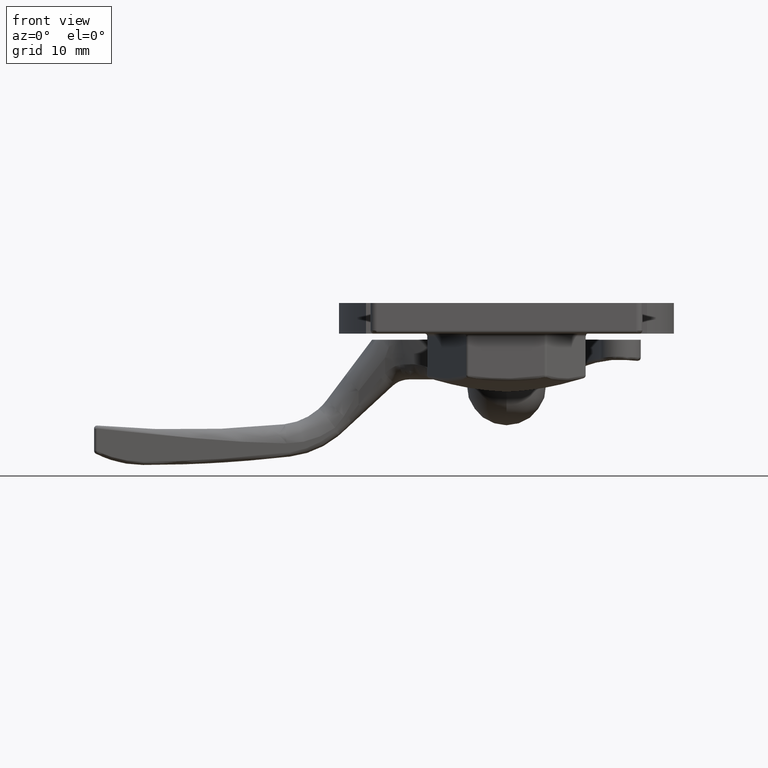
[diagram: clean part render]
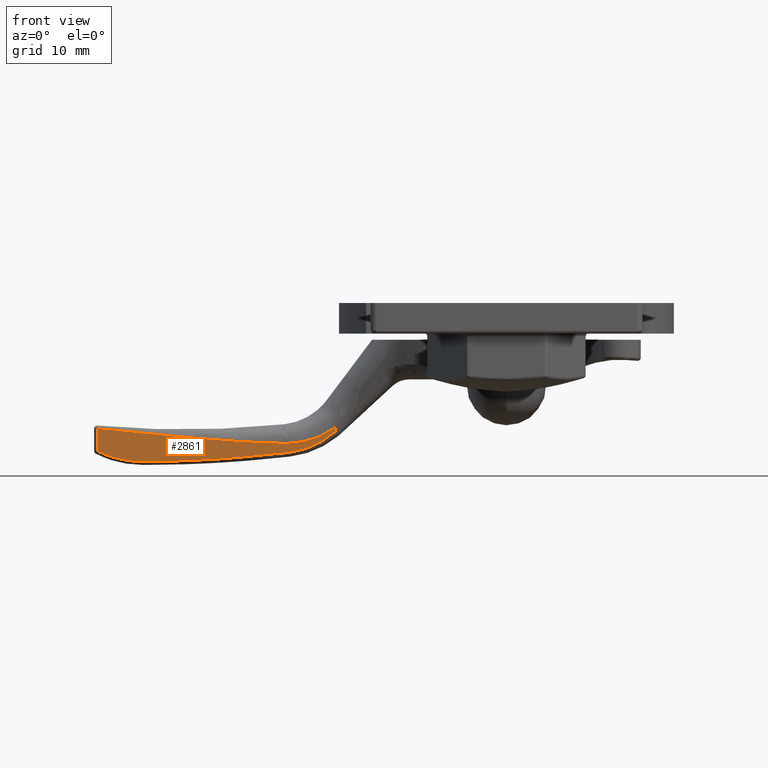
[diagram: same view with one face highlighted and labeled with its STEP entity id]
A machine part, front view. The second image highlights one B-rep face of the part: STEP entity #2861.
In plain terms, the highlighted planar face has unit normal (0, -1, 0).
Its self-contained STEP definition (entity closure, byte-faithful):
#99=LINE('',#5819,#236);
#104=LINE('',#6204,#241);
#236=VECTOR('',#3337,3.64684019201106);
#241=VECTOR('',#3350,0.611558797445106);
#358=PLANE('',#3024);
#403=B_SPLINE_CURVE_WITH_KNOTS('',3,(#4039,#4040,#4041,#4042,#4043),
 .UNSPECIFIED.,.F.,.F.,(4,1,4),(23.9538391599152,24.7068825244577,24.73157493932),
 .UNSPECIFIED.);
#406=B_SPLINE_CURVE_WITH_KNOTS('',3,(#4081,#4082,#4083,#4084),
 .UNSPECIFIED.,.F.,.F.,(4,4),(21.5494819842945,23.953839159909),
 .UNSPECIFIED.);
#409=B_SPLINE_CURVE_WITH_KNOTS('',3,(#4121,#4122,#4123,#4124),
 .UNSPECIFIED.,.F.,.F.,(4,4),(20.7151191988473,21.5494819834158),
 .UNSPECIFIED.);
#524=B_SPLINE_CURVE_WITH_KNOTS('',3,(#6106,#6107,#6108,#6109),
 .UNSPECIFIED.,.F.,.F.,(4,4),(-2.49709215522878,-1.63498779996658),
 .UNSPECIFIED.);
#527=B_SPLINE_CURVE_WITH_KNOTS('',3,(#6157,#6158,#6159,#6160,#6161),
 .UNSPECIFIED.,.F.,.F.,(4,1,4),(-5.61379583955676,-3.83282748949653,-2.49709215522867),
 .UNSPECIFIED.);
#714=FACE_OUTER_BOUND('',#903,.T.);
#903=EDGE_LOOP('',(#2185,#2186,#2187,#2188,#2189,#2190,#2191));
#1183=VERTEX_POINT('',#3977);
#1188=VERTEX_POINT('',#4031);
#1190=VERTEX_POINT('',#4074);
#1192=VERTEX_POINT('',#4114);
#1272=VERTEX_POINT('',#5806);
#1281=VERTEX_POINT('',#6097);
#1282=VERTEX_POINT('',#6105);
#1459=EDGE_CURVE('',#1188,#1183,#403,.T.);
#1462=EDGE_CURVE('',#1190,#1188,#406,.T.);
#1465=EDGE_CURVE('',#1192,#1190,#409,.T.);
#1599=EDGE_CURVE('',#1183,#1272,#99,.T.);
#1618=EDGE_CURVE('',#1281,#1282,#524,.T.);
#1621=EDGE_CURVE('',#1272,#1281,#527,.T.);
#1625=EDGE_CURVE('',#1282,#1192,#104,.T.);
#2185=ORIENTED_EDGE('',*,*,#1465,.F.);
#2186=ORIENTED_EDGE('',*,*,#1625,.F.);
#2187=ORIENTED_EDGE('',*,*,#1618,.F.);
#2188=ORIENTED_EDGE('',*,*,#1621,.F.);
#2189=ORIENTED_EDGE('',*,*,#1599,.F.);
#2190=ORIENTED_EDGE('',*,*,#1459,.F.);
#2191=ORIENTED_EDGE('',*,*,#1462,.F.);
#2861=ADVANCED_FACE('',(#714),#358,.T.);
#3024=AXIS2_PLACEMENT_3D('',#6205,#3351,#3352);
#3337=DIRECTION('',(-4.33257765707378E-16,-1.,1.16730594392135E-31));
#3350=DIRECTION('',(0.,1.,0.));
#3351=DIRECTION('center_axis',(2.69425278971167E-16,0.,1.));
#3352=DIRECTION('ref_axis',(1.,-7.88860905221012E-32,-2.66453525910038E-16));
#3977=CARTESIAN_POINT('',(66.9999999999971,18.1962753089517,-3.50000000000001));
#4031=CARTESIAN_POINT('',(59.4999999959378,19.9593452951095,-3.50000000000001));
#4039=CARTESIAN_POINT('Ctrl Pts',(59.4999999959378,19.9593452951095,-3.50000000000001));
#4040=CARTESIAN_POINT('Ctrl Pts',(62.0102739726077,19.9758090515727,-3.50000000000001));
#4041=CARTESIAN_POINT('Ctrl Pts',(64.6059801246376,19.3912676326997,-3.50000000000001));
#4042=CARTESIAN_POINT('Ctrl Pts',(66.9265892898597,18.2335898898787,-3.50000000000001));
#4043=CARTESIAN_POINT('Ctrl Pts',(67.,18.1962753089576,-3.50000000000001));
#4074=CARTESIAN_POINT('',(35.5194514664753,18.427994674273,-3.50000000000001));
#4081=CARTESIAN_POINT('Ctrl Pts',(35.5194514750084,18.4279946753527,-3.50000000000001));
#4082=CARTESIAN_POINT('Ctrl Pts',(43.4716715680912,19.4341891677566,-3.50000000000001));
#4083=CARTESIAN_POINT('Ctrl Pts',(51.4850628332059,19.9067789337321,-3.50000000000001));
#4084=CARTESIAN_POINT('Ctrl Pts',(59.4999999958764,19.9593452951081,-3.50000000000001));
#4114=CARTESIAN_POINT('',(28.0456580791549,15.0201951444808,-3.5));
#4121=CARTESIAN_POINT('Ctrl Pts',(28.0456580815545,15.0201951418261,-3.5));
#4122=CARTESIAN_POINT('Ctrl Pts',(30.1076929685421,16.8840833782882,-3.5));
#4123=CARTESIAN_POINT('Ctrl Pts',(32.7598629302231,18.078823909023,-3.5));
#4124=CARTESIAN_POINT('Ctrl Pts',(35.5194514662898,18.4279946742499,-3.50000000000001));
#5806=CARTESIAN_POINT('',(67.,14.5494351169407,-3.50000000000001));
#5819=CARTESIAN_POINT('',(67.,10.25,-3.50000000000001));
#6097=CARTESIAN_POINT('',(36.0685837120816,16.9753958189798,-3.50000000000001));
#6105=CARTESIAN_POINT('',(28.0456580759825,14.4086363470357,-3.5));
#6106=CARTESIAN_POINT('Ctrl Pts',(36.0685837120821,16.9753958189798,-3.50000000000001));
#6107=CARTESIAN_POINT('Ctrl Pts',(33.2141411901458,17.0169751264059,-3.50000000000001));
#6108=CARTESIAN_POINT('Ctrl Pts',(30.3565671378821,16.0954434391184,-3.5));
#6109=CARTESIAN_POINT('Ctrl Pts',(28.0456580767347,14.4086363460052,-3.5));
#6157=CARTESIAN_POINT('Ctrl Pts',(66.9999999999997,14.549435116939,-3.50000000000001));
#6158=CARTESIAN_POINT('Ctrl Pts',(61.0891825758168,15.1112672388057,-3.50000000000001));
#6159=CARTESIAN_POINT('Ctrl Pts',(50.7832457036258,16.272313484516,-3.50000000000001));
#6160=CARTESIAN_POINT('Ctrl Pts',(40.4912266472605,16.9109732815426,-3.50000000000001));
#6161=CARTESIAN_POINT('Ctrl Pts',(36.0685837120816,16.9753958189798,-3.50000000000001));
#6204=CARTESIAN_POINT('',(28.0456580738184,-4.44089209850063E-15,-3.5));
#6205=CARTESIAN_POINT('Origin',(18.0514985587985,-4.44089209850063E-15,
-3.5));